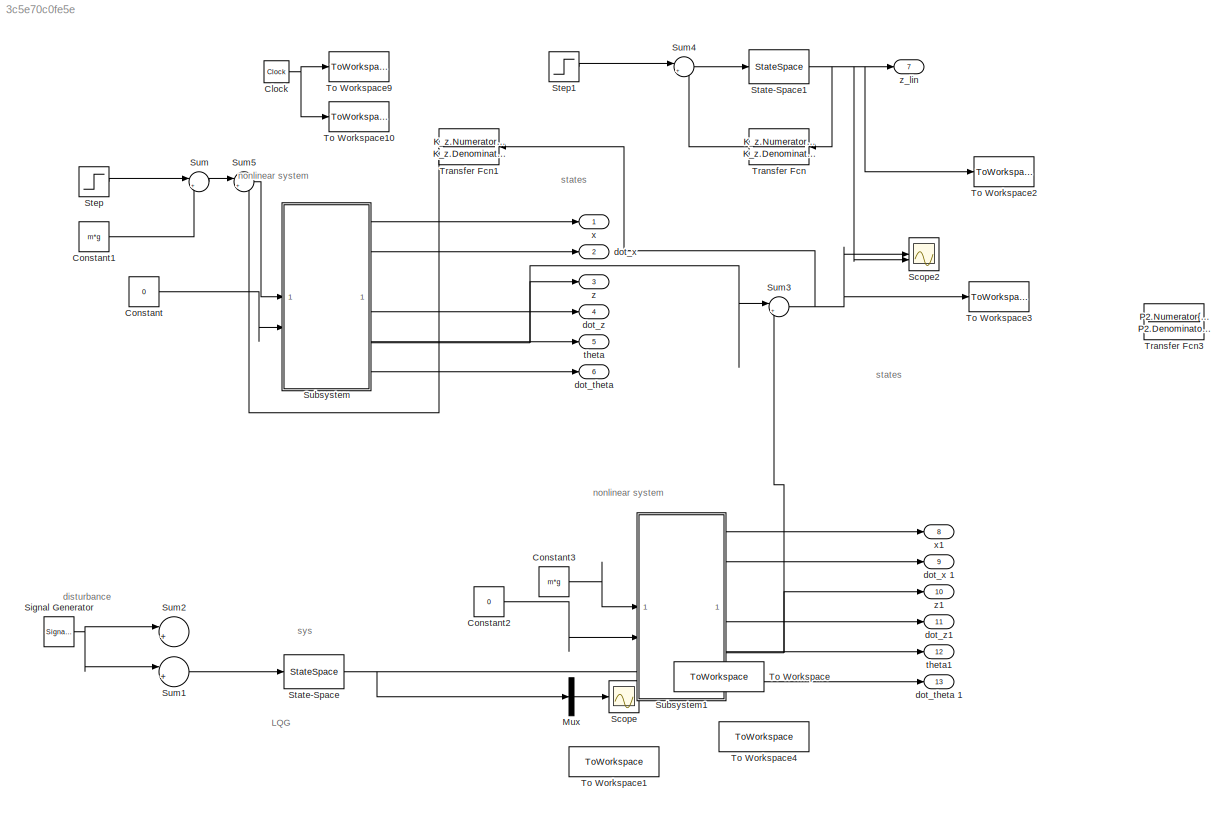
MODEL slx_3c5e70c0fe5e
KIND model
CONFIG AbsTol = auto
CONFIG EnableMultiTasking = off
CONFIG FixedStep = auto
CONFIG MaxStep = auto
CONFIG MinStep = auto
CONFIG RelTol = 1e-4
CONFIG SampleTimeConstraint = Unconstrained
CONFIG SolverName = VariableStepAuto
CONFIG StartTime = 0.0
CONFIG StopTime = 60
BLOCK [Clock] Clock
BLOCK [Constant] Constant
  Value = 0
BLOCK [Constant] Constant1
  Value = m*g
BLOCK [Constant] Constant2
  Value = 0
BLOCK [Constant] Constant3
  Value = m*g
BLOCK [Mux] Mux
  Commented = on
  DisplayOption = bar
  Inputs = 3
BLOCK [Scope] Scope
  Commented = on
  Floating = off
  NumInputPorts = 1
  ScopeSpecificationString = Simulink.scopes.TimeScopeBlockCfg('CurrentConfiguration', extmgr.ConfigurationSet(extmgr.Configuration('Core','General UI',true),extmgr.Configuration('Core','Source UI',true),extmgr.Configuration('Sources','WiredSimulink',true),extmgr.Configuration('Visuals','Time Domain',true,'SerializedDisplays',{struct('MinYLimReal','-0.00015','MaxYLimReal','0.00016','YLabelReal','','MinYLimMag','0.00000','MaxY...<+1430ch>
BLOCK [Scope] Scope2
  Floating = off
  NumInputPorts = 2
  ScopeSpecificationString = Simulink.scopes.TimeScopeBlockCfg('CurrentConfiguration', extmgr.ConfigurationSet(extmgr.Configuration('Core','General UI',true),extmgr.Configuration('Core','Source UI',true),extmgr.Configuration('Sources','WiredSimulink',true,'DataLoggingVariableName','ScopeData1'),extmgr.Configuration('Visuals','Time Domain',true,'SerializedDisplays',{struct('MinYLimReal','-17976931348623157081452742373170435679...<+3943ch>
BLOCK [SignalGenerator] Signal Generator
  Amplitude = 1e-6
  Commented = on
  Units = rad/sec
  WaveForm = square
BLOCK [StateSpace] State-Space
  A = sys.A
  B = sys.B
  C = sys.C
  Commented = on
  D = sys.D
  InitialCondition = 0
BLOCK [StateSpace] State-Space1
  A = A2
  B = B2
  C = C2
  D = D2
  InitialCondition = 0
BLOCK [Step] Step
  After = 7e6
  Before = 0.05*7e6
  SampleTime = 0
  Time = t_on
BLOCK [Step] Step1
  After = 7e6
  Before = 0.05*7e6
  SampleTime = 0
  Time = t_on
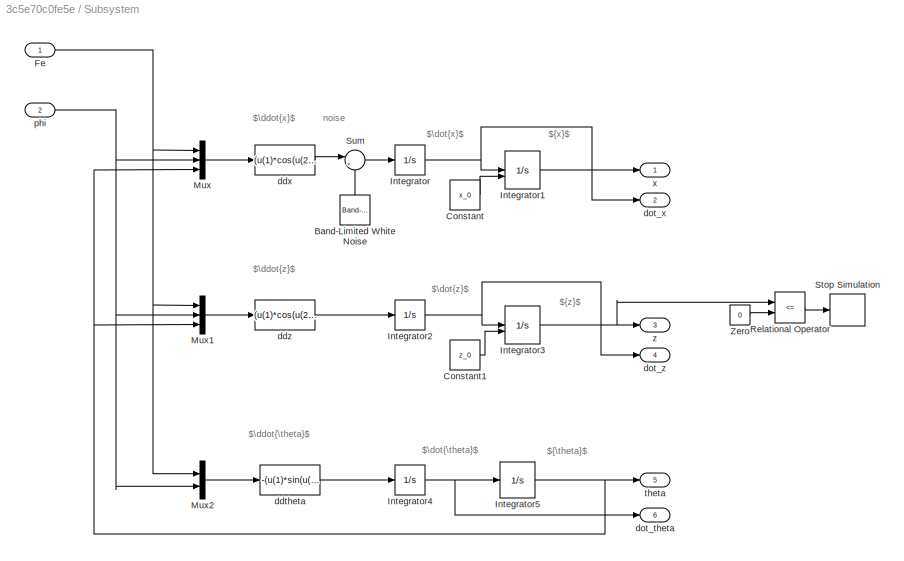
BLOCK [SubSystem] Subsystem
BLOCK [Reference] Subsystem/Band-Limited White Noise  REF=simulink/Sources/Band-Limited
White Noise
  NameLocation = right
  SourceBlock = simulink/Sources/Band-Limited\nWhite Noise
  SourceType = Band-Limited White Noise.
BLOCK [Constant] Subsystem/Constant
  SampleTime = Ts
  Value = x_0
BLOCK [Constant] Subsystem/Constant1
  SampleTime = Ts
  Value = z_0
BLOCK [Inport] Subsystem/Fe
BLOCK [Integrator] Subsystem/Integrator
  ContinuousStateAttributes = 'x_dot'
BLOCK [Integrator] Subsystem/Integrator1
  ContinuousStateAttributes = 'x'
  InitialConditionSource = external
BLOCK [Integrator] Subsystem/Integrator2
  ContinuousStateAttributes = 'z_dot'
BLOCK [Integrator] Subsystem/Integrator3
  ContinuousStateAttributes = 'z'
  InitialCondition = 50
  InitialConditionSource = external
  LimitOutput = on
  LowerSaturationLimit = 0
BLOCK [Integrator] Subsystem/Integrator4
  ContinuousStateAttributes = 'theta_dot'
BLOCK [Integrator] Subsystem/Integrator5
BLOCK [Mux] Subsystem/Mux
  DisplayOption = bar
  Inputs = 3
BLOCK [Mux] Subsystem/Mux1
  DisplayOption = bar
  Inputs = 3
BLOCK [Mux] Subsystem/Mux2
  DisplayOption = bar
  Inputs = 2
BLOCK [RelationalOperator] Subsystem/Relational Operator
  Commented = on
  InputSameDT = off
  Operator = <=
  OutDataTypeStr = boolean
BLOCK [Stop] Subsystem/Stop Simulation
  Commented = on
BLOCK [Sum] Subsystem/Sum
  Inputs = |++
  NameLocation = top
BLOCK [Constant] Subsystem/Zero
  Commented = on
  OutDataTypeStr = Inherit: Inherit via back propagation
  Value = 0
BLOCK [Fcn] Subsystem/ddtheta
  Expr = -(u(1)*sin(u(2))*(60+1*cos(u(2))))/J_T
BLOCK [Fcn] Subsystem/ddx
  Expr = (u(1)*cos(u(2))*sin(u(3))+u(1)*cos(u(3))*sin(u(2)))/m
BLOCK [Fcn] Subsystem/ddz
  Expr = (u(1)*cos(u(2))*cos(u(3))-u(1)*sin(u(2))*sin(u(3))-m*g)/m
BLOCK [Outport] Subsystem/dot_theta 
  Port = 6
BLOCK [Outport] Subsystem/dot_x
  Port = 2
BLOCK [Outport] Subsystem/dot_z 
  Port = 4
BLOCK [Inport] Subsystem/phi
  Port = 2
BLOCK [Outport] Subsystem/theta
  Port = 5
BLOCK [Outport] Subsystem/x
BLOCK [Outport] Subsystem/z
  Port = 3
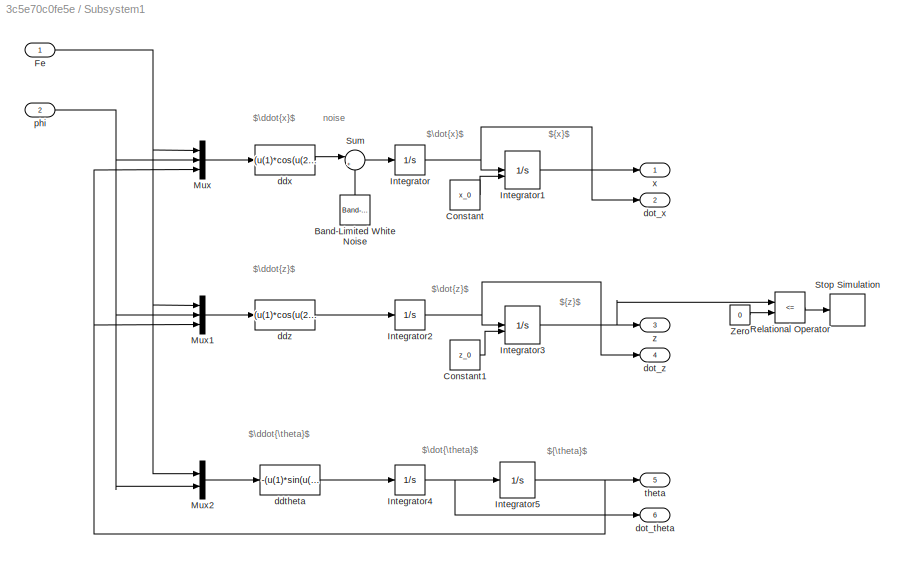
BLOCK [SubSystem] Subsystem1
BLOCK [Reference] Subsystem1/Band-Limited White Noise  REF=simulink/Sources/Band-Limited
White Noise
  NameLocation = right
  SourceBlock = simulink/Sources/Band-Limited\nWhite Noise
  SourceType = Band-Limited White Noise.
BLOCK [Constant] Subsystem1/Constant
  SampleTime = Ts
  Value = x_0
BLOCK [Constant] Subsystem1/Constant1
  SampleTime = Ts
  Value = z_0
BLOCK [Inport] Subsystem1/Fe
BLOCK [Integrator] Subsystem1/Integrator
  ContinuousStateAttributes = 'x_dot'
BLOCK [Integrator] Subsystem1/Integrator1
  ContinuousStateAttributes = 'x'
  InitialConditionSource = external
BLOCK [Integrator] Subsystem1/Integrator2
  ContinuousStateAttributes = 'z_dot'
BLOCK [Integrator] Subsystem1/Integrator3
  ContinuousStateAttributes = 'z'
  InitialCondition = 50
  InitialConditionSource = external
  LimitOutput = on
  LowerSaturationLimit = 0
BLOCK [Integrator] Subsystem1/Integrator4
  ContinuousStateAttributes = 'theta_dot'
BLOCK [Integrator] Subsystem1/Integrator5
BLOCK [Mux] Subsystem1/Mux
  DisplayOption = bar
  Inputs = 3
BLOCK [Mux] Subsystem1/Mux1
  DisplayOption = bar
  Inputs = 3
BLOCK [Mux] Subsystem1/Mux2
  DisplayOption = bar
  Inputs = 2
BLOCK [RelationalOperator] Subsystem1/Relational Operator
  Commented = on
  InputSameDT = off
  Operator = <=
  OutDataTypeStr = boolean
BLOCK [Stop] Subsystem1/Stop Simulation
  Commented = on
BLOCK [Sum] Subsystem1/Sum
  Inputs = |++
  NameLocation = top
BLOCK [Constant] Subsystem1/Zero
  Commented = on
  OutDataTypeStr = Inherit: Inherit via back propagation
  Value = 0
BLOCK [Fcn] Subsystem1/ddtheta
  Expr = -(u(1)*sin(u(2))*(60+1*cos(u(2))))/J_T
BLOCK [Fcn] Subsystem1/ddx
  Expr = (u(1)*cos(u(2))*sin(u(3))+u(1)*cos(u(3))*sin(u(2)))/m
BLOCK [Fcn] Subsystem1/ddz
  Expr = (u(1)*cos(u(2))*cos(u(3))-u(1)*sin(u(2))*sin(u(3))-m*g)/m
BLOCK [Outport] Subsystem1/dot_theta 
  Port = 6
BLOCK [Outport] Subsystem1/dot_x
  Port = 2
BLOCK [Outport] Subsystem1/dot_z 
  Port = 4
BLOCK [Inport] Subsystem1/phi
  Port = 2
BLOCK [Outport] Subsystem1/theta
  Port = 5
BLOCK [Outport] Subsystem1/x
BLOCK [Outport] Subsystem1/z
  Port = 3
BLOCK [Sum] Sum
  Inputs = |++
BLOCK [Sum] Sum1
  Commented = on
  Inputs = |+-
BLOCK [Sum] Sum2
  Commented = on
  Inputs = |+-
BLOCK [Sum] Sum3
  Inputs = |+-
BLOCK [Sum] Sum4
  Inputs = |+-
BLOCK [Sum] Sum5
  Inputs = |+-
BLOCK [ToWorkspace] To Workspace
  Commented = on
  FixptAsFi = on
  MaxDataPoints = inf
  SampleTime = Ts
  VariableName = lin_theta
BLOCK [ToWorkspace] To Workspace1
  Commented = on
  FixptAsFi = on
  MaxDataPoints = inf
  SampleTime = Ts
  VariableName = input_dist
BLOCK [ToWorkspace] To Workspace10
  FixptAsFi = on
  MaxDataPoints = inf
  SampleTime = Ts
  VariableName = ts
BLOCK [ToWorkspace] To Workspace2
  FixptAsFi = on
  MaxDataPoints = inf
  SampleTime = Ts
  VariableName = z_lin
BLOCK [ToWorkspace] To Workspace3
  FixptAsFi = on
  MaxDataPoints = inf
  SampleTime = Ts
  VariableName = z
BLOCK [ToWorkspace] To Workspace4
  Commented = on
  FixptAsFi = on
  MaxDataPoints = inf
  SampleTime = Ts
  VariableName = theta
BLOCK [ToWorkspace] To Workspace9
  FixptAsFi = on
  MaxDataPoints = inf
  SampleTime = -1
  VariableName = t
BLOCK [TransferFcn] Transfer Fcn
  Denominator = K_z.Denominator{1}
  Numerator = K_z.Numerator{1}
BLOCK [TransferFcn] Transfer Fcn1
  Denominator = K_z.Denominator{1}
  Numerator = K_z.Numerator{1}
BLOCK [TransferFcn] Transfer Fcn3
  Commented = on
  Denominator = P2.Denominator{1}
  NameLocation = top
  Numerator = P2.Numerator{1}
BLOCK [Outport] dot_theta 
  Port = 6
BLOCK [Outport] dot_theta 1
  Port = 13
BLOCK [Outport] dot_x 
  Port = 2
BLOCK [Outport] dot_x 1
  Port = 9
BLOCK [Outport] dot_z
  Port = 4
BLOCK [Outport] dot_z1
  Port = 11
BLOCK [Outport] theta
  Port = 5
BLOCK [Outport] theta1
  Port = 12
BLOCK [Outport] x
BLOCK [Outport] x1
  Port = 8
BLOCK [Outport] z
  Port = 3
BLOCK [Outport] z1
  Port = 10
BLOCK [Outport] z_lin
  Port = 7
ANNOTATION (root): disturbance
ANNOTATION (root): LQG
ANNOTATION (root): nonlinear system
ANNOTATION (root): states
ANNOTATION (root): sys
ANNOTATION Subsystem: noise
ANNOTATION Subsystem: $\ddot{\theta}$
ANNOTATION Subsystem: $\ddot{x}$
ANNOTATION Subsystem: $\ddot{z}$
ANNOTATION Subsystem: $\dot{\theta}$
ANNOTATION Subsystem: $\dot{x}$
ANNOTATION Subsystem: $\dot{z}$
ANNOTATION Subsystem: ${\theta}$
ANNOTATION Subsystem: ${x}$
ANNOTATION Subsystem: ${z}$
ANNOTATION Subsystem1: noise
ANNOTATION Subsystem1: $\ddot{\theta}$
ANNOTATION Subsystem1: $\ddot{x}$
ANNOTATION Subsystem1: $\ddot{z}$
ANNOTATION Subsystem1: $\dot{\theta}$
ANNOTATION Subsystem1: $\dot{x}$
ANNOTATION Subsystem1: $\dot{z}$
ANNOTATION Subsystem1: ${\theta}$
ANNOTATION Subsystem1: ${x}$
ANNOTATION Subsystem1: ${z}$
NET Clock:1 -> To Workspace10:1, To Workspace9:1
LINE Constant1:1 -> Sum:2
LINE Constant2:1 -> Subsystem1:2
LINE Constant3:1 -> Subsystem1:1
LINE Constant:1 -> Subsystem:2
LINE Mux:1 -> Scope:1
NET Signal Generator:1 -> Sum1:1, Sum2:1
NET State-Space1:1 -> Scope2:2, To Workspace2:1, Transfer Fcn:1, z_lin:1
NET State-Space:1 -> Mux:2, To Workspace:1
LINE Step1:1 -> Sum4:1
LINE Step:1 -> Sum:1
LINE Subsystem/Band-Limited White Noise:1 -> Subsystem/Sum:2
LINE Subsystem/Constant1:1 -> Subsystem/Integrator3:2
LINE Subsystem/Constant:1 -> Subsystem/Integrator1:2
NET Subsystem/Fe:1 -> Subsystem/Mux1:1, Subsystem/Mux2:1, Subsystem/Mux:1
LINE Subsystem/Integrator1:1 -> Subsystem/x:1
NET Subsystem/Integrator2:1 -> Subsystem/Integrator3:1, Subsystem/dot_z :1
NET Subsystem/Integrator3:1 -> Subsystem/Relational Operator:1, Subsystem/z:1
NET Subsystem/Integrator4:1 -> Subsystem/Integrator5:1, Subsystem/dot_theta :1
NET Subsystem/Integrator5:1 -> Subsystem/Mux1:3, Subsystem/Mux:3, Subsystem/theta:1
NET Subsystem/Integrator:1 -> Subsystem/Integrator1:1, Subsystem/dot_x:1
LINE Subsystem/Mux1:1 -> Subsystem/ddz:1
LINE Subsystem/Mux2:1 -> Subsystem/ddtheta:1
LINE Subsystem/Mux:1 -> Subsystem/ddx:1
LINE Subsystem/Relational Operator:1 -> Subsystem/Stop Simulation:1
LINE Subsystem/Sum:1 -> Subsystem/Integrator:1
LINE Subsystem/Zero:1 -> Subsystem/Relational Operator:2
LINE Subsystem/ddtheta:1 -> Subsystem/Integrator4:1
LINE Subsystem/ddx:1 -> Subsystem/Sum:1
LINE Subsystem/ddz:1 -> Subsystem/Integrator2:1
NET Subsystem/phi:1 -> Subsystem/Mux1:2, Subsystem/Mux2:2, Subsystem/Mux:2
LINE Subsystem1/Band-Limited White Noise:1 -> Subsystem1/Sum:2
LINE Subsystem1/Constant1:1 -> Subsystem1/Integrator3:2
LINE Subsystem1/Constant:1 -> Subsystem1/Integrator1:2
NET Subsystem1/Fe:1 -> Subsystem1/Mux1:1, Subsystem1/Mux2:1, Subsystem1/Mux:1
LINE Subsystem1/Integrator1:1 -> Subsystem1/x:1
NET Subsystem1/Integrator2:1 -> Subsystem1/Integrator3:1, Subsystem1/dot_z :1
NET Subsystem1/Integrator3:1 -> Subsystem1/Relational Operator:1, Subsystem1/z:1
NET Subsystem1/Integrator4:1 -> Subsystem1/Integrator5:1, Subsystem1/dot_theta :1
NET Subsystem1/Integrator5:1 -> Subsystem1/Mux1:3, Subsystem1/Mux:3, Subsystem1/theta:1
NET Subsystem1/Integrator:1 -> Subsystem1/Integrator1:1, Subsystem1/dot_x:1
LINE Subsystem1/Mux1:1 -> Subsystem1/ddz:1
LINE Subsystem1/Mux2:1 -> Subsystem1/ddtheta:1
LINE Subsystem1/Mux:1 -> Subsystem1/ddx:1
LINE Subsystem1/Relational Operator:1 -> Subsystem1/Stop Simulation:1
LINE Subsystem1/Sum:1 -> Subsystem1/Integrator:1
LINE Subsystem1/Zero:1 -> Subsystem1/Relational Operator:2
LINE Subsystem1/ddtheta:1 -> Subsystem1/Integrator4:1
LINE Subsystem1/ddx:1 -> Subsystem1/Sum:1
LINE Subsystem1/ddz:1 -> Subsystem1/Integrator2:1
NET Subsystem1/phi:1 -> Subsystem1/Mux1:2, Subsystem1/Mux2:2, Subsystem1/Mux:2
LINE Subsystem1:1 -> x1:1
LINE Subsystem1:2 -> dot_x 1:1
NET Subsystem1:3 -> Sum3:2, z1:1
LINE Subsystem1:4 -> dot_z1:1
LINE Subsystem1:5 -> theta1:1
LINE Subsystem1:6 -> dot_theta 1:1
LINE Subsystem:1 -> x:1
LINE Subsystem:2 -> dot_x :1
NET Subsystem:3 -> Sum3:1, z:1
LINE Subsystem:4 -> dot_z:1
LINE Subsystem:5 -> theta:1
LINE Subsystem:6 -> dot_theta :1
LINE Sum1:1 -> State-Space:1
NET Sum3:1 -> Scope2:1, To Workspace3:1, Transfer Fcn1:1
LINE Sum4:1 -> State-Space1:1
LINE Sum5:1 -> Subsystem:1
LINE Sum:1 -> Sum5:1
LINE Transfer Fcn1:1 -> Sum5:2
LINE Transfer Fcn:1 -> Sum4:2
note: NET lines group one-source signal fan-out (src -> all destinations, sorted); 1:1 wires keep LINE
